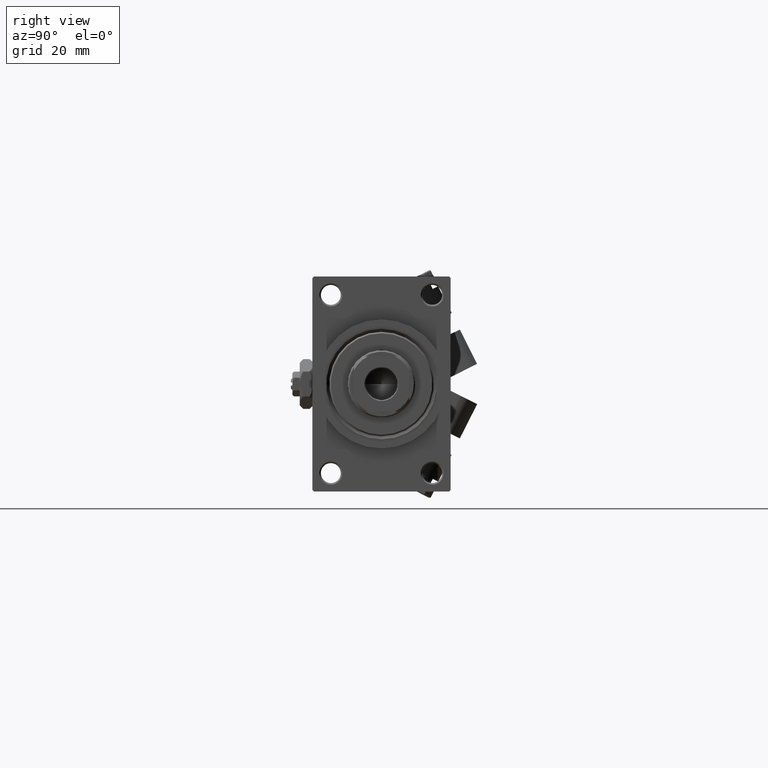
[diagram: clean part render]
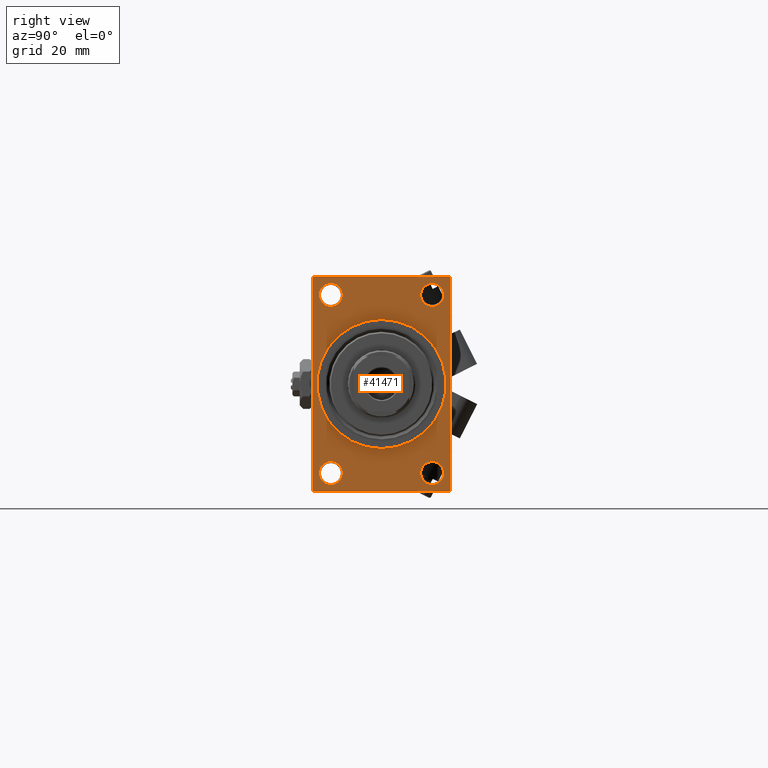
[diagram: same view with one face highlighted and labeled with its STEP entity id]
A machine part, right view. The second image highlights one B-rep face of the part: STEP entity #41471.
In plain terms, the highlighted planar face has unit normal (-1, 0, 0).
Its self-contained STEP definition (entity closure, byte-faithful):
#341 = CARTESIAN_POINT ( 'NONE',  ( 173.0000000000000284, -16.50000000000000000, -28.99999999999999289 ) ) ;
#644 = CARTESIAN_POINT ( 'NONE',  ( 173.0000000000000284, -16.50000000000000000, 29.00000000000000711 ) ) ;
#681 = ORIENTED_EDGE ( 'NONE', *, *, #46674, .T. ) ;
#1233 = EDGE_CURVE ( 'NONE', #49318, #22623, #3044, .T. ) ;
#1495 = AXIS2_PLACEMENT_3D ( 'NONE', #341, #31295, #16104 ) ;
#1819 = VERTEX_POINT ( 'NONE', #36696 ) ;
#2113 = LINE ( 'NONE', #17620, #5149 ) ;
#2639 = VERTEX_POINT ( 'NONE', #7567 ) ;
#3044 = LINE ( 'NONE', #3296, #24440 ) ;
#3146 = EDGE_CURVE ( 'NONE', #22623, #6566, #33830, .T. ) ;
#3215 = AXIS2_PLACEMENT_3D ( 'NONE', #30341, #26549, #37456 ) ;
#3296 = CARTESIAN_POINT ( 'NONE',  ( 173.0000000000000284, 22.49999999999999645, 35.00000000000000000 ) ) ;
#3457 = EDGE_LOOP ( 'NONE', ( #14084, #34998 ) ) ;
#3623 = DIRECTION ( 'NONE',  ( -0.000000000000000000, -0.7071067811865279218, -0.7071067811865671127 ) ) ;
#3647 = CARTESIAN_POINT ( 'NONE',  ( 173.0000000000000284, 0.000000000000000000, 0.000000000000000000 ) ) ;
#3683 = EDGE_LOOP ( 'NONE', ( #33117, #36063, #29772, #27077, #24562, #23892, #33939, #48935 ) ) ;
#3910 = CIRCLE ( 'NONE', #1495, 3.750000000000166533 ) ;
#4094 = LINE ( 'NONE', #31733, #18936 ) ;
#4330 = VERTEX_POINT ( 'NONE', #21466 ) ;
#5149 = VECTOR ( 'NONE', #36611, 1000.000000000000000 ) ;
#5252 = DIRECTION ( 'NONE',  ( -0.000000000000000000, 0.7071067811865279218, 0.7071067811865671127 ) ) ;
#5254 = CARTESIAN_POINT ( 'NONE',  ( 173.0000000000000284, -22.50000000000000355, 34.50000000000000000 ) ) ;
#5258 = EDGE_CURVE ( 'NONE', #6566, #2639, #30168, .T. ) ;
#5360 = CARTESIAN_POINT ( 'NONE',  ( 173.0000000000000284, 16.50000000000000000, -28.99999999999999289 ) ) ;
#5736 = EDGE_CURVE ( 'NONE', #12869, #4330, #2113, .T. ) ;
#6151 = AXIS2_PLACEMENT_3D ( 'NONE', #26799, #42015, #22752 ) ;
#6421 = FACE_OUTER_BOUND ( 'NONE', #3683, .T. ) ;
#6495 = DIRECTION ( 'NONE',  ( 0.000000000000000000, 0.000000000000000000, 1.000000000000000000 ) ) ;
#6566 = VERTEX_POINT ( 'NONE', #5254 ) ;
#7567 = CARTESIAN_POINT ( 'NONE',  ( 173.0000000000000284, -22.50000000000000355, -34.50000000000000000 ) ) ;
#7911 = DIRECTION ( 'NONE',  ( 0.000000000000000000, 0.000000000000000000, -1.000000000000000000 ) ) ;
#7979 = AXIS2_PLACEMENT_3D ( 'NONE', #26193, #34281, #38341 ) ;
#9587 = VERTEX_POINT ( 'NONE', #17363 ) ;
#10026 = EDGE_CURVE ( 'NONE', #19987, #49318, #15664, .T. ) ;
#10194 = ORIENTED_EDGE ( 'NONE', *, *, #32178, .T. ) ;
#10311 = CARTESIAN_POINT ( 'NONE',  ( 173.0000000000000284, 16.50000000000000000, 29.00000000000000355 ) ) ;
#10345 = EDGE_CURVE ( 'NONE', #19987, #24191, #4094, .T. ) ;
#10930 = CARTESIAN_POINT ( 'NONE',  ( 173.0000000000000284, 16.50000000000000000, -28.99999999999999289 ) ) ;
#11301 = DIRECTION ( 'NONE',  ( -1.000000000000000000, -0.000000000000000000, -0.000000000000000000 ) ) ;
#12192 = CARTESIAN_POINT ( 'NONE',  ( 173.0000000000000284, -16.50000000000000000, 32.75000000000017764 ) ) ;
#12326 = VECTOR ( 'NONE', #3623, 1000.000000000000000 ) ;
#12852 = EDGE_CURVE ( 'NONE', #42948, #20846, #48217, .T. ) ;
#12869 = VERTEX_POINT ( 'NONE', #42114 ) ;
#12878 = CARTESIAN_POINT ( 'NONE',  ( 173.0000000000000284, 22.49999999999999645, -34.50000000000000000 ) ) ;
#13185 = ORIENTED_EDGE ( 'NONE', *, *, #32092, .F. ) ;
#13387 = EDGE_CURVE ( 'NONE', #47440, #1819, #36049, .T. ) ;
#13688 = CIRCLE ( 'NONE', #24217, 3.750000000000169642 ) ;
#14084 = ORIENTED_EDGE ( 'NONE', *, *, #44363, .T. ) ;
#14141 = CARTESIAN_POINT ( 'NONE',  ( 173.0000000000000284, 16.50000000000000000, 32.75000000000017764 ) ) ;
#14211 = AXIS2_PLACEMENT_3D ( 'NONE', #22545, #22297, #40830 ) ;
#14484 = ORIENTED_EDGE ( 'NONE', *, *, #48214, .T. ) ;
#15378 = CIRCLE ( 'NONE', #3215, 3.750000000000169642 ) ;
#15664 = LINE ( 'NONE', #27316, #15695 ) ;
#15695 = VECTOR ( 'NONE', #38728, 1000.000000000000114 ) ;
#16077 = EDGE_LOOP ( 'NONE', ( #10194, #14484 ) ) ;
#16104 = DIRECTION ( 'NONE',  ( 0.000000000000000000, 0.000000000000000000, 1.000000000000000000 ) ) ;
#16590 = EDGE_CURVE ( 'NONE', #24731, #33181, #36999, .T. ) ;
#17052 = DIRECTION ( 'NONE',  ( -1.000000000000000000, -0.000000000000000000, -0.000000000000000000 ) ) ;
#17094 = AXIS2_PLACEMENT_3D ( 'NONE', #5360, #17052, #43939 ) ;
#17363 = CARTESIAN_POINT ( 'NONE',  ( 173.0000000000000284, -16.50000000000000000, 25.24999999999984368 ) ) ;
#17620 = CARTESIAN_POINT ( 'NONE',  ( 173.0000000000000284, 22.49999999999999645, -35.00000000000000000 ) ) ;
#18936 = VECTOR ( 'NONE', #7911, 1000.000000000000000 ) ;
#19052 = EDGE_CURVE ( 'NONE', #2639, #4330, #43862, .T. ) ;
#19987 = VERTEX_POINT ( 'NONE', #49396 ) ;
#20217 = ORIENTED_EDGE ( 'NONE', *, *, #13387, .T. ) ;
#20846 = VERTEX_POINT ( 'NONE', #32994 ) ;
#21255 = LINE ( 'NONE', #12878, #24268 ) ;
#21466 = CARTESIAN_POINT ( 'NONE',  ( 173.0000000000000284, -21.99999999999998934, -35.00000000000000000 ) ) ;
#21491 = AXIS2_PLACEMENT_3D ( 'NONE', #10930, #33758, #49252 ) ;
#21549 = CIRCLE ( 'NONE', #6151, 21.00000000000000000 ) ;
#21902 = PLANE ( 'NONE',  #7979 ) ;
#22297 = DIRECTION ( 'NONE',  ( -1.000000000000000000, -0.000000000000000000, -0.000000000000000000 ) ) ;
#22545 = CARTESIAN_POINT ( 'NONE',  ( 173.0000000000000284, -16.50000000000000000, -28.99999999999999289 ) ) ;
#22623 = VERTEX_POINT ( 'NONE', #41656 ) ;
#22752 = DIRECTION ( 'NONE',  ( 0.000000000000000000, 0.000000000000000000, -1.000000000000000000 ) ) ;
#23324 = VECTOR ( 'NONE', #36473, 1000.000000000000114 ) ;
#23892 = ORIENTED_EDGE ( 'NONE', *, *, #10026, .T. ) ;
#23917 = CARTESIAN_POINT ( 'NONE',  ( 173.0000000000000284, 21.99999999999999645, 35.00000000000000000 ) ) ;
#24098 = ORIENTED_EDGE ( 'NONE', *, *, #16590, .F. ) ;
#24191 = VERTEX_POINT ( 'NONE', #43508 ) ;
#24217 = AXIS2_PLACEMENT_3D ( 'NONE', #10311, #25783, #6495 ) ;
#24268 = VECTOR ( 'NONE', #5252, 1000.000000000000000 ) ;
#24440 = VECTOR ( 'NONE', #41852, 1000.000000000000000 ) ;
#24562 = ORIENTED_EDGE ( 'NONE', *, *, #10345, .F. ) ;
#24731 = VERTEX_POINT ( 'NONE', #30442 ) ;
#24893 = AXIS2_PLACEMENT_3D ( 'NONE', #3647, #30787, #49828 ) ;
#25654 = CARTESIAN_POINT ( 'NONE',  ( 173.0000000000000284, -22.50000000000000355, 35.00000000000000000 ) ) ;
#25783 = DIRECTION ( 'NONE',  ( -1.000000000000000000, -0.000000000000000000, -0.000000000000000000 ) ) ;
#26193 = CARTESIAN_POINT ( 'NONE',  ( 173.0000000000000284, 0.000000000000000000, 0.000000000000000000 ) ) ;
#26549 = DIRECTION ( 'NONE',  ( -1.000000000000000000, -0.000000000000000000, -0.000000000000000000 ) ) ;
#26690 = CARTESIAN_POINT ( 'NONE',  ( 173.0000000000000284, -16.50000000000000000, -25.24999999999982592 ) ) ;
#26799 = CARTESIAN_POINT ( 'NONE',  ( 173.0000000000000284, 0.000000000000000000, 0.000000000000000000 ) ) ;
#27021 = CARTESIAN_POINT ( 'NONE',  ( 173.0000000000000284, -16.50000000000000000, 29.00000000000000711 ) ) ;
#27077 = ORIENTED_EDGE ( 'NONE', *, *, #49048, .T. ) ;
#27316 = CARTESIAN_POINT ( 'NONE',  ( 173.0000000000000284, 21.99999999999999645, 35.00000000000000000 ) ) ;
#27444 = VERTEX_POINT ( 'NONE', #48043 ) ;
#27800 = DIRECTION ( 'NONE',  ( 0.000000000000000000, 0.000000000000000000, 1.000000000000000000 ) ) ;
#29772 = ORIENTED_EDGE ( 'NONE', *, *, #5736, .F. ) ;
#29889 = CARTESIAN_POINT ( 'NONE',  ( 173.0000000000000284, 16.50000000000000000, -32.75000000000017053 ) ) ;
#30168 = LINE ( 'NONE', #25654, #39088 ) ;
#30341 = CARTESIAN_POINT ( 'NONE',  ( 173.0000000000000284, 16.50000000000000000, 29.00000000000000355 ) ) ;
#30363 = ORIENTED_EDGE ( 'NONE', *, *, #41350, .T. ) ;
#30442 = CARTESIAN_POINT ( 'NONE',  ( 173.0000000000000284, 0.000000000000000000, 21.00000000000000000 ) ) ;
#30787 = DIRECTION ( 'NONE',  ( 1.000000000000000000, 0.000000000000000000, 0.000000000000000000 ) ) ;
#31295 = DIRECTION ( 'NONE',  ( -1.000000000000000000, -0.000000000000000000, -0.000000000000000000 ) ) ;
#31733 = CARTESIAN_POINT ( 'NONE',  ( 173.0000000000000284, 22.49999999999999645, 35.00000000000000000 ) ) ;
#32092 = EDGE_CURVE ( 'NONE', #33181, #24731, #21549, .T. ) ;
#32178 = EDGE_CURVE ( 'NONE', #9587, #36622, #40978, .T. ) ;
#32915 = CARTESIAN_POINT ( 'NONE',  ( 173.0000000000000284, -22.00000000000000355, -35.00000000000000000 ) ) ;
#32994 = CARTESIAN_POINT ( 'NONE',  ( 173.0000000000000284, 16.50000000000000000, -25.24999999999982592 ) ) ;
#33117 = ORIENTED_EDGE ( 'NONE', *, *, #5258, .T. ) ;
#33181 = VERTEX_POINT ( 'NONE', #34593 ) ;
#33550 = FACE_BOUND ( 'NONE', #36495, .T. ) ;
#33758 = DIRECTION ( 'NONE',  ( -1.000000000000000000, -0.000000000000000000, -0.000000000000000000 ) ) ;
#33830 = LINE ( 'NONE', #41454, #12326 ) ;
#33939 = ORIENTED_EDGE ( 'NONE', *, *, #1233, .T. ) ;
#34281 = DIRECTION ( 'NONE',  ( -1.000000000000000000, 0.000000000000000000, -0.000000000000000000 ) ) ;
#34531 = FACE_BOUND ( 'NONE', #16077, .T. ) ;
#34593 = CARTESIAN_POINT ( 'NONE',  ( 173.0000000000000284, 2.571758278209441661E-15, -21.00000000000000000 ) ) ;
#34940 = AXIS2_PLACEMENT_3D ( 'NONE', #27021, #11301, #39183 ) ;
#34998 = ORIENTED_EDGE ( 'NONE', *, *, #42000, .T. ) ;
#35397 = DIRECTION ( 'NONE',  ( -1.000000000000000000, -0.000000000000000000, -0.000000000000000000 ) ) ;
#36049 = CIRCLE ( 'NONE', #14211, 3.750000000000166533 ) ;
#36063 = ORIENTED_EDGE ( 'NONE', *, *, #19052, .T. ) ;
#36473 = DIRECTION ( 'NONE',  ( 0.000000000000000000, 0.7071067811865474617, -0.7071067811865474617 ) ) ;
#36495 = EDGE_LOOP ( 'NONE', ( #37503, #681 ) ) ;
#36611 = DIRECTION ( 'NONE',  ( 0.000000000000000000, -1.000000000000000000, 0.000000000000000000 ) ) ;
#36622 = VERTEX_POINT ( 'NONE', #12192 ) ;
#36696 = CARTESIAN_POINT ( 'NONE',  ( 173.0000000000000284, -16.50000000000000000, -32.75000000000017053 ) ) ;
#36999 = CIRCLE ( 'NONE', #24893, 21.00000000000000000 ) ;
#37456 = DIRECTION ( 'NONE',  ( 0.000000000000000000, 0.000000000000000000, 1.000000000000000000 ) ) ;
#37503 = ORIENTED_EDGE ( 'NONE', *, *, #12852, .T. ) ;
#38341 = DIRECTION ( 'NONE',  ( -0.000000000000000000, 0.000000000000000000, 1.000000000000000000 ) ) ;
#38728 = DIRECTION ( 'NONE',  ( 0.000000000000000000, -0.7071067811865474617, 0.7071067811865474617 ) ) ;
#39088 = VECTOR ( 'NONE', #49961, 1000.000000000000000 ) ;
#39183 = DIRECTION ( 'NONE',  ( 0.000000000000000000, 0.000000000000000000, 1.000000000000000000 ) ) ;
#40581 = CIRCLE ( 'NONE', #17094, 3.750000000000166533 ) ;
#40830 = DIRECTION ( 'NONE',  ( 0.000000000000000000, 0.000000000000000000, 1.000000000000000000 ) ) ;
#40978 = CIRCLE ( 'NONE', #47469, 3.750000000000166533 ) ;
#41172 = FACE_BOUND ( 'NONE', #3457, .T. ) ;
#41350 = EDGE_CURVE ( 'NONE', #1819, #47440, #3910, .T. ) ;
#41417 = FACE_BOUND ( 'NONE', #43699, .T. ) ;
#41454 = CARTESIAN_POINT ( 'NONE',  ( 173.0000000000000284, -22.50000000000000355, 34.50000000000000000 ) ) ;
#41471 = ADVANCED_FACE ( 'NONE', ( #34531, #49038, #33550, #41172, #41417, #6421 ), #21902, .F. ) ;
#41656 = CARTESIAN_POINT ( 'NONE',  ( 173.0000000000000284, -22.00000000000001776, 35.00000000000000000 ) ) ;
#41852 = DIRECTION ( 'NONE',  ( 0.000000000000000000, -1.000000000000000000, 0.000000000000000000 ) ) ;
#42000 = EDGE_CURVE ( 'NONE', #50009, #27444, #13688, .T. ) ;
#42015 = DIRECTION ( 'NONE',  ( 1.000000000000000000, 0.000000000000000000, 0.000000000000000000 ) ) ;
#42114 = CARTESIAN_POINT ( 'NONE',  ( 173.0000000000000284, 22.00000000000002132, -35.00000000000000000 ) ) ;
#42948 = VERTEX_POINT ( 'NONE', #29889 ) ;
#43069 = CIRCLE ( 'NONE', #34940, 3.750000000000166533 ) ;
#43508 = CARTESIAN_POINT ( 'NONE',  ( 173.0000000000000284, 22.49999999999999645, -34.50000000000000000 ) ) ;
#43699 = EDGE_LOOP ( 'NONE', ( #24098, #13185 ) ) ;
#43862 = LINE ( 'NONE', #32915, #23324 ) ;
#43939 = DIRECTION ( 'NONE',  ( 0.000000000000000000, 0.000000000000000000, 1.000000000000000000 ) ) ;
#44363 = EDGE_CURVE ( 'NONE', #27444, #50009, #15378, .T. ) ;
#46674 = EDGE_CURVE ( 'NONE', #20846, #42948, #40581, .T. ) ;
#47440 = VERTEX_POINT ( 'NONE', #26690 ) ;
#47469 = AXIS2_PLACEMENT_3D ( 'NONE', #644, #35397, #27800 ) ;
#48043 = CARTESIAN_POINT ( 'NONE',  ( 173.0000000000000284, 16.50000000000000000, 25.24999999999983658 ) ) ;
#48214 = EDGE_CURVE ( 'NONE', #36622, #9587, #43069, .T. ) ;
#48217 = CIRCLE ( 'NONE', #21491, 3.750000000000166533 ) ;
#48272 = EDGE_LOOP ( 'NONE', ( #30363, #20217 ) ) ;
#48935 = ORIENTED_EDGE ( 'NONE', *, *, #3146, .T. ) ;
#49038 = FACE_BOUND ( 'NONE', #48272, .T. ) ;
#49048 = EDGE_CURVE ( 'NONE', #12869, #24191, #21255, .T. ) ;
#49252 = DIRECTION ( 'NONE',  ( 0.000000000000000000, 0.000000000000000000, 1.000000000000000000 ) ) ;
#49318 = VERTEX_POINT ( 'NONE', #23917 ) ;
#49396 = CARTESIAN_POINT ( 'NONE',  ( 173.0000000000000284, 22.49999999999999645, 34.50000000000000000 ) ) ;
#49828 = DIRECTION ( 'NONE',  ( 0.000000000000000000, 0.000000000000000000, -1.000000000000000000 ) ) ;
#49961 = DIRECTION ( 'NONE',  ( 0.000000000000000000, 0.000000000000000000, -1.000000000000000000 ) ) ;
#50009 = VERTEX_POINT ( 'NONE', #14141 ) ;